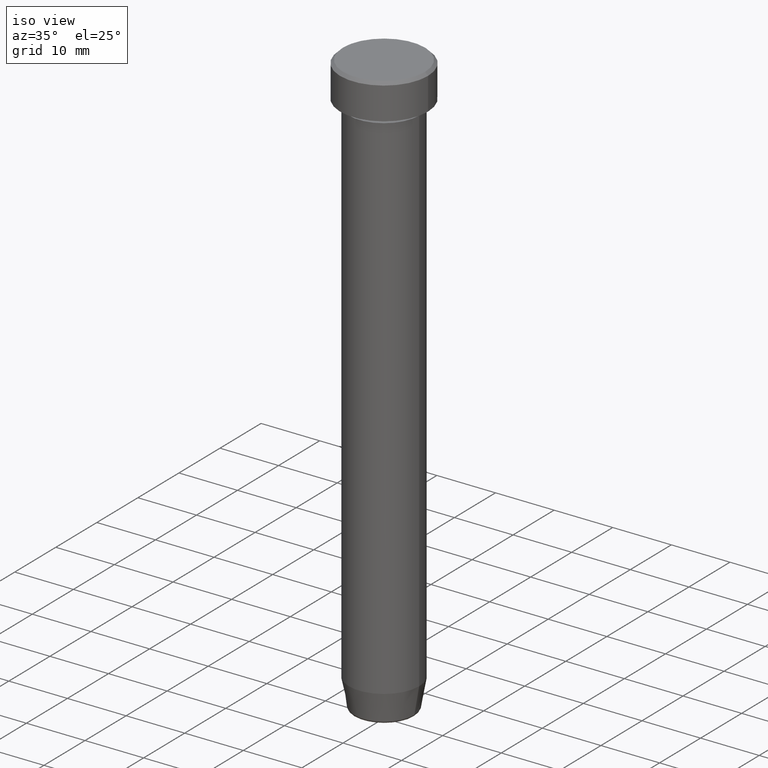
[diagram: clean part render]
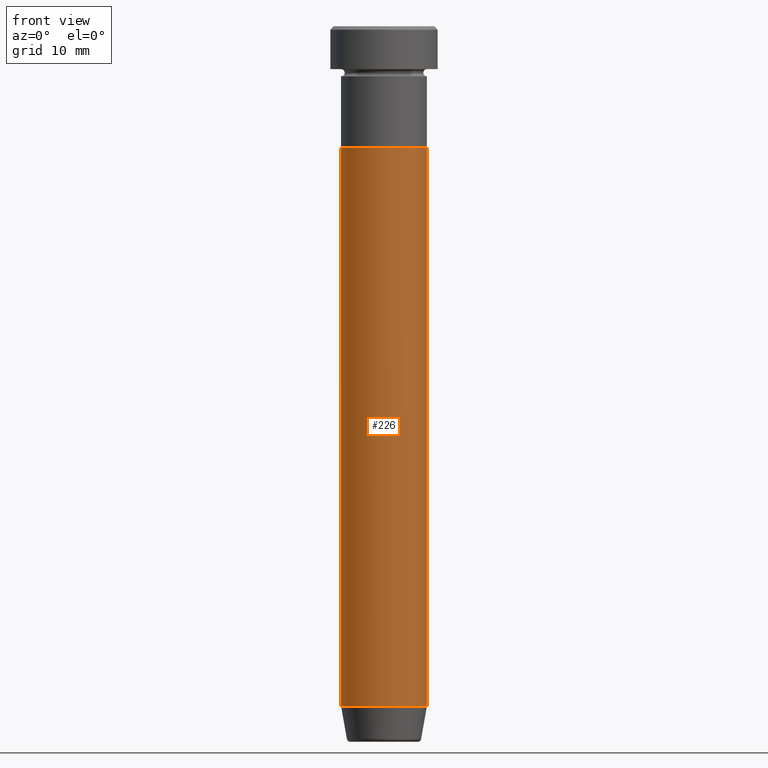
[diagram: tour spotlight — one face highlighted and labeled with its STEP entity id]
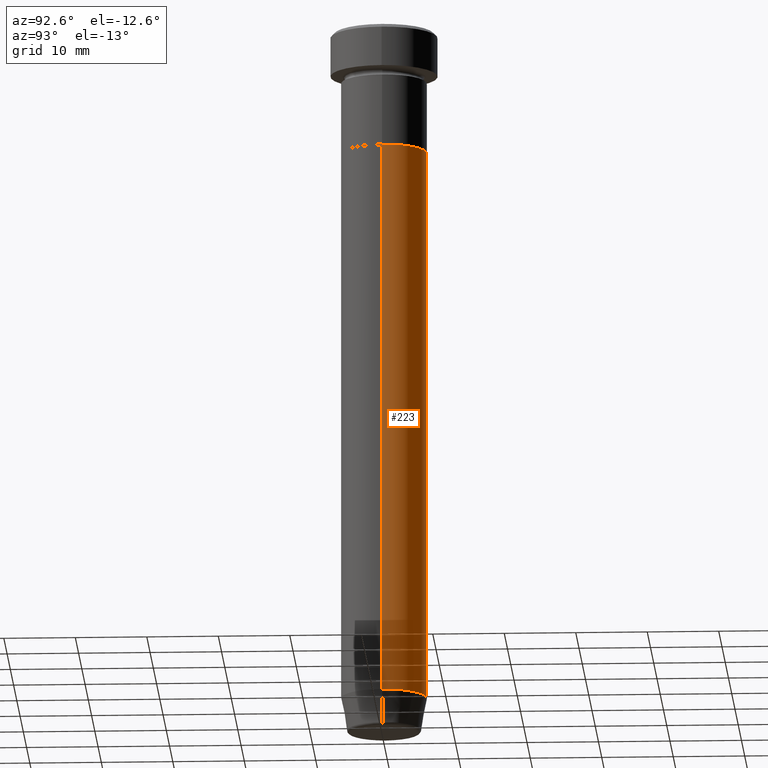
[diagram: tour spotlight — one face highlighted and labeled with its STEP entity id]
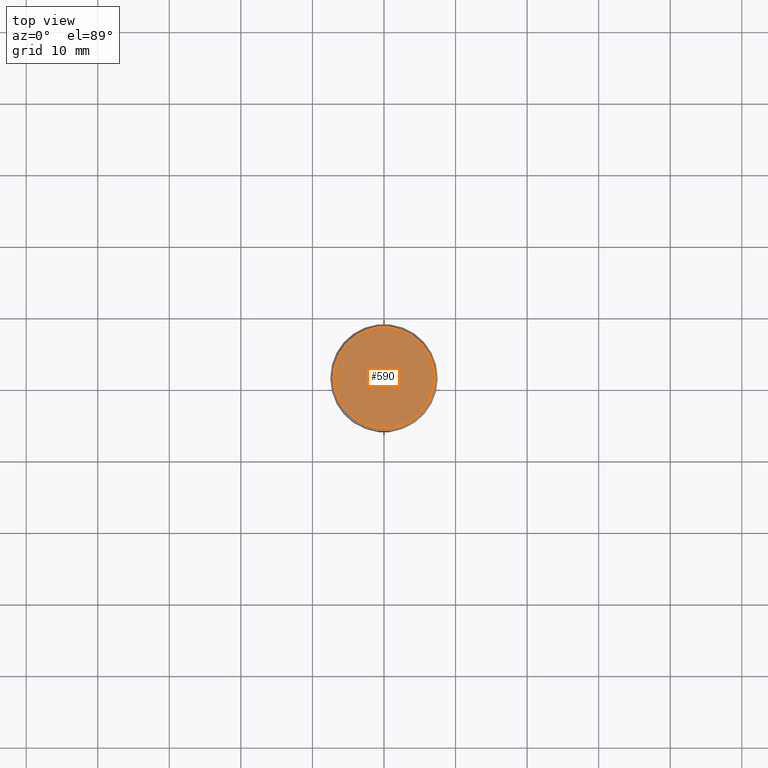
[diagram: tour spotlight — one face highlighted and labeled with its STEP entity id]
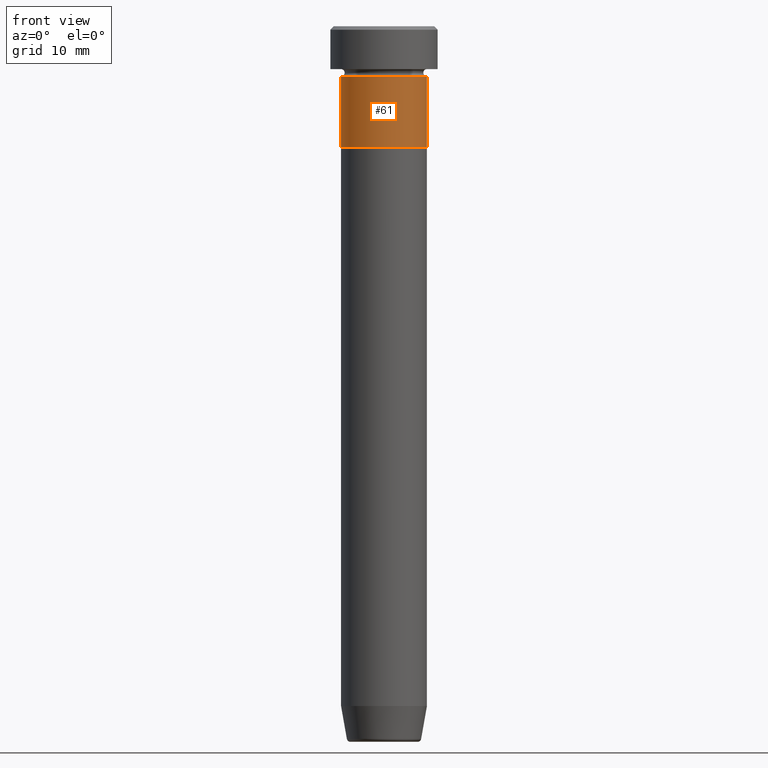
[diagram: tour spotlight — one face highlighted and labeled with its STEP entity id]
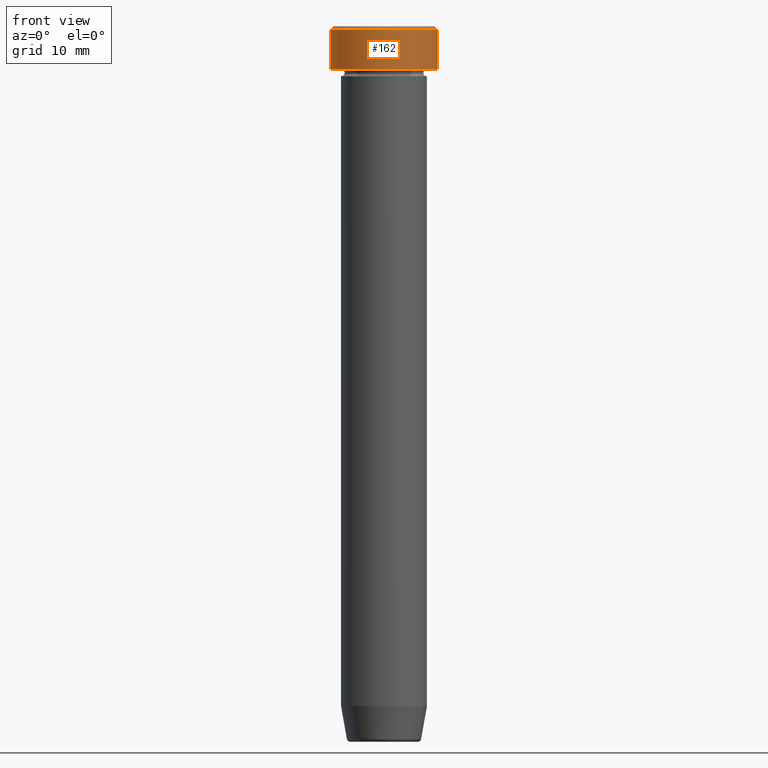
[diagram: tour spotlight — one face highlighted and labeled with its STEP entity id]
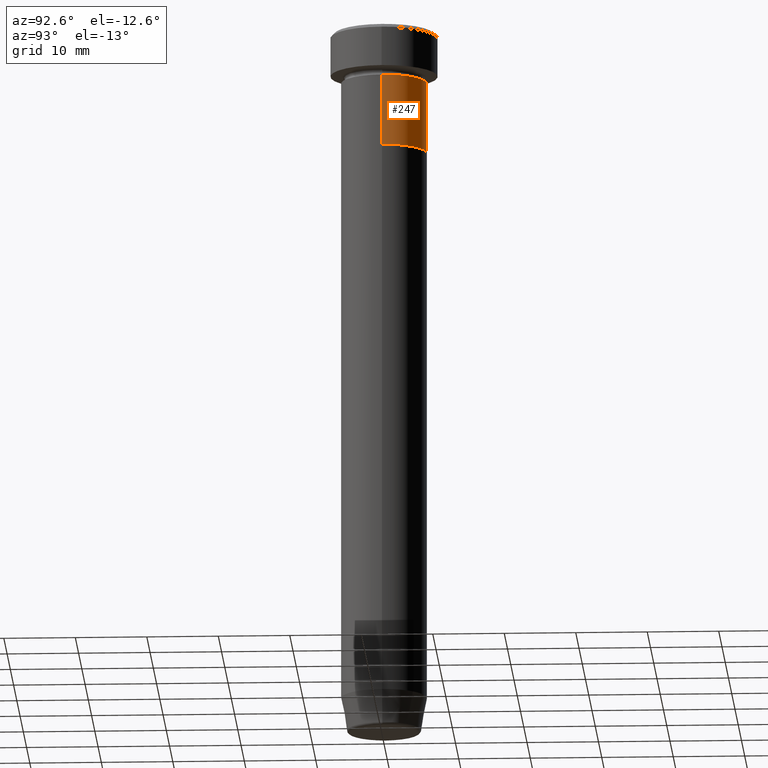
[diagram: tour spotlight — one face highlighted and labeled with its STEP entity id]
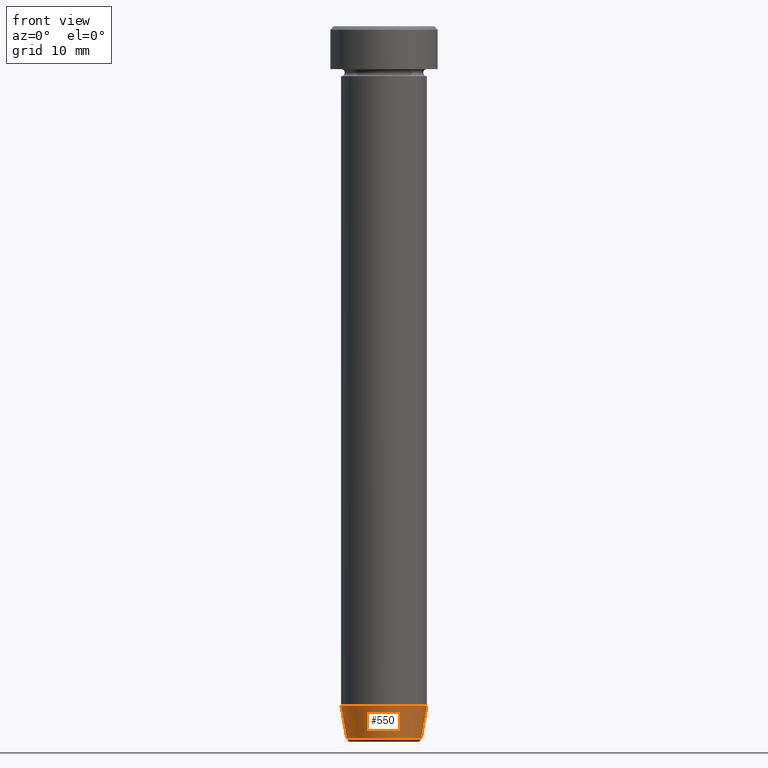
[diagram: tour spotlight — one face highlighted and labeled with its STEP entity id]
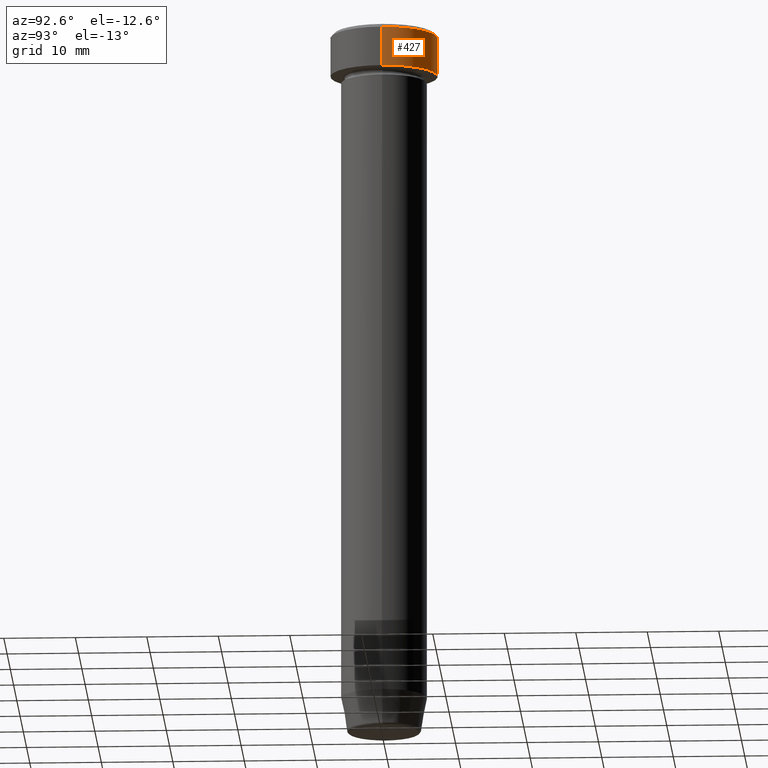
[diagram: tour spotlight — one face highlighted and labeled with its STEP entity id]
A machine part: a face-by-face anatomy tour. The part has 21 B-rep faces; the first image is the clean iso view, then the 8 largest visible faces are spotlighted one at a time (largest first), each with its STEP entity span.

Face 1 — front view, entity #226. In plain terms, the highlighted cylindrical surface (partial cylindrical patch) has radius 6 mm, axis along (-0, -0, 1).
Definition (entity closure, byte-faithful):
#11 = DIRECTION ( 'NONE',  ( -0.000000000000000000, -0.000000000000000000, 1.000000000000000000 ) ) ;
#17 = CARTESIAN_POINT ( 'NONE',  ( 6.000000000000000000, 0.000000000000000000, -95.00000000000000000 ) ) ;
#23 = ORIENTED_EDGE ( 'NONE', *, *, #424, .T. ) ;
#54 = CARTESIAN_POINT ( 'NONE',  ( 6.000000000000000000, 0.000000000000000000, -17.00000000000000000 ) ) ;
#56 = CARTESIAN_POINT ( 'NONE',  ( 0.000000000000000000, 0.000000000000000000, -17.00000000000000000 ) ) ;
#70 = VERTEX_POINT ( 'NONE', #95 ) ;
#78 = CARTESIAN_POINT ( 'NONE',  ( 0.000000000000000000, 0.000000000000000000, 0.000000000000000000 ) ) ;
#95 = CARTESIAN_POINT ( 'NONE',  ( -6.000000000000000000, 7.347880794884119736E-16, -95.00000000000000000 ) ) ;
#102 = EDGE_CURVE ( 'NONE', #589, #485, #198, .T. ) ;
#116 = EDGE_CURVE ( 'NONE', #70, #589, #187, .T. ) ;
#132 = AXIS2_PLACEMENT_3D ( 'NONE', #548, #135, #504 ) ;
#135 = DIRECTION ( 'NONE',  ( -0.000000000000000000, -0.000000000000000000, 1.000000000000000000 ) ) ;
#159 = DIRECTION ( 'NONE',  ( -0.000000000000000000, -0.000000000000000000, 1.000000000000000000 ) ) ;
#176 = ORIENTED_EDGE ( 'NONE', *, *, #116, .F. ) ;
#184 = VERTEX_POINT ( 'NONE', #17 ) ;
#187 = LINE ( 'NONE', #418, #584 ) ;
#198 = CIRCLE ( 'NONE', #264, 6.000000000000000000 ) ;
#201 = FACE_OUTER_BOUND ( 'NONE', #274, .T. ) ;
#226 = ADVANCED_FACE ( 'NONE', ( #201 ), #378, .T. ) ;
#263 = DIRECTION ( 'NONE',  ( -0.000000000000000000, -0.000000000000000000, 1.000000000000000000 ) ) ;
#264 = AXIS2_PLACEMENT_3D ( 'NONE', #56, #369, #322 ) ;
#265 = VECTOR ( 'NONE', #263, 1000.000000000000000 ) ;
#274 = EDGE_LOOP ( 'NONE', ( #176, #23, #338, #540 ) ) ;
#322 = DIRECTION ( 'NONE',  ( 1.000000000000000000, 0.000000000000000000, 0.000000000000000000 ) ) ;
#324 = EDGE_CURVE ( 'NONE', #184, #485, #398, .T. ) ;
#338 = ORIENTED_EDGE ( 'NONE', *, *, #324, .T. ) ;
#353 = CARTESIAN_POINT ( 'NONE',  ( 6.000000000000000000, 0.000000000000000000, 0.000000000000000000 ) ) ;
#354 = AXIS2_PLACEMENT_3D ( 'NONE', #78, #159, #436 ) ;
#369 = DIRECTION ( 'NONE',  ( -0.000000000000000000, -0.000000000000000000, 1.000000000000000000 ) ) ;
#378 = CYLINDRICAL_SURFACE ( 'NONE', #354, 6.000000000000000000 ) ;
#383 = CIRCLE ( 'NONE', #132, 6.000000000000000000 ) ;
#398 = LINE ( 'NONE', #353, #265 ) ;
#418 = CARTESIAN_POINT ( 'NONE',  ( -6.000000000000000000, 7.347880794884119736E-16, 0.000000000000000000 ) ) ;
#424 = EDGE_CURVE ( 'NONE', #70, #184, #383, .T. ) ;
#436 = DIRECTION ( 'NONE',  ( 1.000000000000000000, 0.000000000000000000, 0.000000000000000000 ) ) ;
#485 = VERTEX_POINT ( 'NONE', #54 ) ;
#504 = DIRECTION ( 'NONE',  ( 1.000000000000000000, 0.000000000000000000, 0.000000000000000000 ) ) ;
#516 = CARTESIAN_POINT ( 'NONE',  ( -6.000000000000000000, 7.347880794884119736E-16, -17.00000000000000000 ) ) ;
#540 = ORIENTED_EDGE ( 'NONE', *, *, #102, .F. ) ;
#548 = CARTESIAN_POINT ( 'NONE',  ( 0.000000000000000000, 0.000000000000000000, -95.00000000000000000 ) ) ;
#584 = VECTOR ( 'NONE', #11, 1000.000000000000000 ) ;
#589 = VERTEX_POINT ( 'NONE', #516 ) ;

Face 2 — auxiliary view, entity #223. In plain terms, the highlighted cylindrical surface (partial cylindrical patch) has radius 6 mm, axis along (-0, -0, 1).
Definition (entity closure, byte-faithful):
#11 = DIRECTION ( 'NONE',  ( -0.000000000000000000, -0.000000000000000000, 1.000000000000000000 ) ) ;
#17 = CARTESIAN_POINT ( 'NONE',  ( 6.000000000000000000, 0.000000000000000000, -95.00000000000000000 ) ) ;
#29 = DIRECTION ( 'NONE',  ( -0.000000000000000000, -0.000000000000000000, 1.000000000000000000 ) ) ;
#37 = ORIENTED_EDGE ( 'NONE', *, *, #116, .T. ) ;
#43 = AXIS2_PLACEMENT_3D ( 'NONE', #261, #29, #528 ) ;
#51 = AXIS2_PLACEMENT_3D ( 'NONE', #586, #133, #128 ) ;
#54 = CARTESIAN_POINT ( 'NONE',  ( 6.000000000000000000, 0.000000000000000000, -17.00000000000000000 ) ) ;
#70 = VERTEX_POINT ( 'NONE', #95 ) ;
#95 = CARTESIAN_POINT ( 'NONE',  ( -6.000000000000000000, 7.347880794884119736E-16, -95.00000000000000000 ) ) ;
#112 = CYLINDRICAL_SURFACE ( 'NONE', #543, 6.000000000000000000 ) ;
#113 = CIRCLE ( 'NONE', #51, 6.000000000000000000 ) ;
#116 = EDGE_CURVE ( 'NONE', #70, #589, #187, .T. ) ;
#127 = ORIENTED_EDGE ( 'NONE', *, *, #384, .F. ) ;
#128 = DIRECTION ( 'NONE',  ( 1.000000000000000000, 0.000000000000000000, 0.000000000000000000 ) ) ;
#133 = DIRECTION ( 'NONE',  ( -0.000000000000000000, -0.000000000000000000, 1.000000000000000000 ) ) ;
#140 = CIRCLE ( 'NONE', #43, 6.000000000000000000 ) ;
#174 = EDGE_CURVE ( 'NONE', #184, #70, #140, .T. ) ;
#184 = VERTEX_POINT ( 'NONE', #17 ) ;
#187 = LINE ( 'NONE', #418, #584 ) ;
#223 = ADVANCED_FACE ( 'NONE', ( #341 ), #112, .T. ) ;
#258 = CARTESIAN_POINT ( 'NONE',  ( 0.000000000000000000, 0.000000000000000000, 0.000000000000000000 ) ) ;
#261 = CARTESIAN_POINT ( 'NONE',  ( 0.000000000000000000, 0.000000000000000000, -95.00000000000000000 ) ) ;
#263 = DIRECTION ( 'NONE',  ( -0.000000000000000000, -0.000000000000000000, 1.000000000000000000 ) ) ;
#265 = VECTOR ( 'NONE', #263, 1000.000000000000000 ) ;
#324 = EDGE_CURVE ( 'NONE', #184, #485, #398, .T. ) ;
#341 = FACE_OUTER_BOUND ( 'NONE', #402, .T. ) ;
#353 = CARTESIAN_POINT ( 'NONE',  ( 6.000000000000000000, 0.000000000000000000, 0.000000000000000000 ) ) ;
#384 = EDGE_CURVE ( 'NONE', #485, #589, #113, .T. ) ;
#385 = DIRECTION ( 'NONE',  ( -0.000000000000000000, -0.000000000000000000, 1.000000000000000000 ) ) ;
#398 = LINE ( 'NONE', #353, #265 ) ;
#402 = EDGE_LOOP ( 'NONE', ( #576, #37, #127, #456 ) ) ;
#418 = CARTESIAN_POINT ( 'NONE',  ( -6.000000000000000000, 7.347880794884119736E-16, 0.000000000000000000 ) ) ;
#456 = ORIENTED_EDGE ( 'NONE', *, *, #324, .F. ) ;
#484 = DIRECTION ( 'NONE',  ( 1.000000000000000000, 0.000000000000000000, 0.000000000000000000 ) ) ;
#485 = VERTEX_POINT ( 'NONE', #54 ) ;
#516 = CARTESIAN_POINT ( 'NONE',  ( -6.000000000000000000, 7.347880794884119736E-16, -17.00000000000000000 ) ) ;
#528 = DIRECTION ( 'NONE',  ( 1.000000000000000000, 0.000000000000000000, 0.000000000000000000 ) ) ;
#543 = AXIS2_PLACEMENT_3D ( 'NONE', #258, #385, #484 ) ;
#576 = ORIENTED_EDGE ( 'NONE', *, *, #174, .T. ) ;
#584 = VECTOR ( 'NONE', #11, 1000.000000000000000 ) ;
#586 = CARTESIAN_POINT ( 'NONE',  ( 0.000000000000000000, 0.000000000000000000, -17.00000000000000000 ) ) ;
#589 = VERTEX_POINT ( 'NONE', #516 ) ;

Face 3 — top view, entity #590. In plain terms, the highlighted planar face has unit normal (0, -0, 1).
Definition (entity closure, byte-faithful):
#52 = AXIS2_PLACEMENT_3D ( 'NONE', #242, #231, #412 ) ;
#55 = CIRCLE ( 'NONE', #397, 7.000000000000001776 ) ;
#59 = CARTESIAN_POINT ( 'NONE',  ( 7.000000000000001776, 8.878689293818310074E-16, 0.000000000000000000 ) ) ;
#64 = VERTEX_POINT ( 'NONE', #515 ) ;
#87 = DIRECTION ( 'NONE',  ( -0.000000000000000000, -0.000000000000000000, 1.000000000000000000 ) ) ;
#134 = VERTEX_POINT ( 'NONE', #59 ) ;
#179 = CARTESIAN_POINT ( 'NONE',  ( 0.000000000000000000, 0.000000000000000000, 0.000000000000000000 ) ) ;
#183 = DIRECTION ( 'NONE',  ( 1.000000000000000000, 0.000000000000000000, 0.000000000000000000 ) ) ;
#190 = AXIS2_PLACEMENT_3D ( 'NONE', #179, #594, #183 ) ;
#231 = DIRECTION ( 'NONE',  ( 0.000000000000000000, -0.000000000000000000, 1.000000000000000000 ) ) ;
#242 = CARTESIAN_POINT ( 'NONE',  ( 0.000000000000000000, 0.000000000000000000, 0.000000000000000000 ) ) ;
#275 = FACE_OUTER_BOUND ( 'NONE', #381, .T. ) ;
#313 = CARTESIAN_POINT ( 'NONE',  ( 0.000000000000000000, 0.000000000000000000, 0.000000000000000000 ) ) ;
#359 = EDGE_CURVE ( 'NONE', #134, #64, #55, .T. ) ;
#381 = EDGE_LOOP ( 'NONE', ( #459, #386 ) ) ;
#386 = ORIENTED_EDGE ( 'NONE', *, *, #359, .T. ) ;
#397 = AXIS2_PLACEMENT_3D ( 'NONE', #313, #87, #450 ) ;
#412 = DIRECTION ( 'NONE',  ( 1.000000000000000000, 0.000000000000000000, 0.000000000000000000 ) ) ;
#414 = EDGE_CURVE ( 'NONE', #64, #134, #449, .T. ) ;
#449 = CIRCLE ( 'NONE', #190, 7.000000000000001776 ) ;
#450 = DIRECTION ( 'NONE',  ( 1.000000000000000000, 0.000000000000000000, 0.000000000000000000 ) ) ;
#459 = ORIENTED_EDGE ( 'NONE', *, *, #414, .T. ) ;
#471 = PLANE ( 'NONE',  #52 ) ;
#515 = CARTESIAN_POINT ( 'NONE',  ( -7.000000000000001776, 0.000000000000000000, 0.000000000000000000 ) ) ;
#590 = ADVANCED_FACE ( 'NONE', ( #275 ), #471, .T. ) ;
#594 = DIRECTION ( 'NONE',  ( -0.000000000000000000, -0.000000000000000000, 1.000000000000000000 ) ) ;

Face 4 — front view, entity #61. In plain terms, the highlighted cylindrical surface (partial cylindrical patch) has radius 6 mm, axis along (-0, -0, 1).
Definition (entity closure, byte-faithful):
#33 = VERTEX_POINT ( 'NONE', #428 ) ;
#36 = CARTESIAN_POINT ( 'NONE',  ( -6.000000000000000000, 7.347880794884119736E-16, 0.000000000000000000 ) ) ;
#39 = LINE ( 'NONE', #36, #235 ) ;
#61 = ADVANCED_FACE ( 'NONE', ( #158 ), #557, .T. ) ;
#73 = AXIS2_PLACEMENT_3D ( 'NONE', #426, #199, #100 ) ;
#94 = CARTESIAN_POINT ( 'NONE',  ( 6.000000000000000000, 0.000000000000000000, -17.00000000000000000 ) ) ;
#100 = DIRECTION ( 'NONE',  ( 1.000000000000000000, 0.000000000000000000, 0.000000000000000000 ) ) ;
#123 = ORIENTED_EDGE ( 'NONE', *, *, #579, .F. ) ;
#129 = EDGE_CURVE ( 'NONE', #549, #583, #284, .T. ) ;
#144 = DIRECTION ( 'NONE',  ( 1.000000000000000000, 0.000000000000000000, 0.000000000000000000 ) ) ;
#148 = DIRECTION ( 'NONE',  ( -0.000000000000000000, -0.000000000000000000, 1.000000000000000000 ) ) ;
#154 = DIRECTION ( 'NONE',  ( -0.000000000000000000, -0.000000000000000000, 1.000000000000000000 ) ) ;
#158 = FACE_OUTER_BOUND ( 'NONE', #204, .T. ) ;
#170 = EDGE_CURVE ( 'NONE', #358, #549, #489, .T. ) ;
#181 = ORIENTED_EDGE ( 'NONE', *, *, #304, .F. ) ;
#199 = DIRECTION ( 'NONE',  ( -0.000000000000000000, -0.000000000000000000, 1.000000000000000000 ) ) ;
#204 = EDGE_LOOP ( 'NONE', ( #181, #536, #268, #123 ) ) ;
#215 = DIRECTION ( 'NONE',  ( 1.000000000000000000, 0.000000000000000000, 0.000000000000000000 ) ) ;
#234 = CARTESIAN_POINT ( 'NONE',  ( 0.000000000000000000, 0.000000000000000000, 0.000000000000000000 ) ) ;
#235 = VECTOR ( 'NONE', #545, 1000.000000000000000 ) ;
#268 = ORIENTED_EDGE ( 'NONE', *, *, #129, .T. ) ;
#284 = LINE ( 'NONE', #472, #534 ) ;
#299 = CARTESIAN_POINT ( 'NONE',  ( 0.000000000000000000, 0.000000000000000000, -17.00000000000000000 ) ) ;
#304 = EDGE_CURVE ( 'NONE', #358, #33, #39, .T. ) ;
#358 = VERTEX_POINT ( 'NONE', #360 ) ;
#360 = CARTESIAN_POINT ( 'NONE',  ( -6.000000000000000000, 7.347880794884119736E-16, -17.00000000000000000 ) ) ;
#375 = CARTESIAN_POINT ( 'NONE',  ( 6.000000000000000000, 0.000000000000000000, -7.000000000000000000 ) ) ;
#396 = AXIS2_PLACEMENT_3D ( 'NONE', #299, #492, #215 ) ;
#426 = CARTESIAN_POINT ( 'NONE',  ( 0.000000000000000000, 0.000000000000000000, -7.000000000000000000 ) ) ;
#428 = CARTESIAN_POINT ( 'NONE',  ( -6.000000000000000000, 7.347880794884119736E-16, -7.000000000000000000 ) ) ;
#448 = AXIS2_PLACEMENT_3D ( 'NONE', #234, #148, #144 ) ;
#472 = CARTESIAN_POINT ( 'NONE',  ( 6.000000000000000000, 0.000000000000000000, 0.000000000000000000 ) ) ;
#489 = CIRCLE ( 'NONE', #396, 6.000000000000000000 ) ;
#492 = DIRECTION ( 'NONE',  ( -0.000000000000000000, -0.000000000000000000, 1.000000000000000000 ) ) ;
#510 = CIRCLE ( 'NONE', #73, 6.000000000000000000 ) ;
#534 = VECTOR ( 'NONE', #154, 1000.000000000000000 ) ;
#536 = ORIENTED_EDGE ( 'NONE', *, *, #170, .T. ) ;
#545 = DIRECTION ( 'NONE',  ( -0.000000000000000000, -0.000000000000000000, 1.000000000000000000 ) ) ;
#549 = VERTEX_POINT ( 'NONE', #94 ) ;
#557 = CYLINDRICAL_SURFACE ( 'NONE', #448, 6.000000000000000000 ) ;
#579 = EDGE_CURVE ( 'NONE', #33, #583, #510, .T. ) ;
#583 = VERTEX_POINT ( 'NONE', #375 ) ;

Face 5 — front view, entity #162. In plain terms, the highlighted cylindrical surface (partial cylindrical patch) has radius 7.5 mm, axis along (-0, -0, 1).
Definition (entity closure, byte-faithful):
#14 = CARTESIAN_POINT ( 'NONE',  ( -7.500000000000000000, 9.184850993605147944E-16, -0.4999999999999987232 ) ) ;
#35 = CIRCLE ( 'NONE', #498, 7.500000000000000000 ) ;
#53 = AXIS2_PLACEMENT_3D ( 'NONE', #80, #69, #74 ) ;
#69 = DIRECTION ( 'NONE',  ( 0.000000000000000000, 0.000000000000000000, -1.000000000000000000 ) ) ;
#74 = DIRECTION ( 'NONE',  ( 1.000000000000000000, 0.000000000000000000, 0.000000000000000000 ) ) ;
#80 = CARTESIAN_POINT ( 'NONE',  ( 0.000000000000000000, 0.000000000000000000, -0.4999999999999987232 ) ) ;
#88 = ORIENTED_EDGE ( 'NONE', *, *, #165, .T. ) ;
#115 = CARTESIAN_POINT ( 'NONE',  ( 7.500000000000000000, 0.000000000000000000, -0.4999999999999987232 ) ) ;
#119 = DIRECTION ( 'NONE',  ( -0.000000000000000000, -0.000000000000000000, 1.000000000000000000 ) ) ;
#142 = EDGE_CURVE ( 'NONE', #296, #197, #474, .T. ) ;
#152 = CIRCLE ( 'NONE', #53, 7.500000000000000000 ) ;
#162 = ADVANCED_FACE ( 'NONE', ( #535 ), #291, .T. ) ;
#165 = EDGE_CURVE ( 'NONE', #197, #220, #152, .T. ) ;
#172 = CARTESIAN_POINT ( 'NONE',  ( -7.500000000000000000, 9.184850993605147944E-16, -6.000000000000000000 ) ) ;
#173 = VECTOR ( 'NONE', #301, 1000.000000000000000 ) ;
#189 = EDGE_CURVE ( 'NONE', #225, #220, #380, .T. ) ;
#197 = VERTEX_POINT ( 'NONE', #115 ) ;
#209 = DIRECTION ( 'NONE',  ( 1.000000000000000000, 0.000000000000000000, 0.000000000000000000 ) ) ;
#220 = VERTEX_POINT ( 'NONE', #14 ) ;
#225 = VERTEX_POINT ( 'NONE', #172 ) ;
#243 = ORIENTED_EDGE ( 'NONE', *, *, #142, .T. ) ;
#245 = CARTESIAN_POINT ( 'NONE',  ( 7.500000000000000000, 0.000000000000000000, 0.000000000000000000 ) ) ;
#272 = EDGE_CURVE ( 'NONE', #225, #296, #35, .T. ) ;
#291 = CYLINDRICAL_SURFACE ( 'NONE', #513, 7.500000000000000000 ) ;
#295 = DIRECTION ( 'NONE',  ( 1.000000000000000000, 0.000000000000000000, 0.000000000000000000 ) ) ;
#296 = VERTEX_POINT ( 'NONE', #446 ) ;
#301 = DIRECTION ( 'NONE',  ( -0.000000000000000000, -0.000000000000000000, 1.000000000000000000 ) ) ;
#335 = CARTESIAN_POINT ( 'NONE',  ( 0.000000000000000000, 0.000000000000000000, 0.000000000000000000 ) ) ;
#337 = CARTESIAN_POINT ( 'NONE',  ( 0.000000000000000000, 0.000000000000000000, -6.000000000000000000 ) ) ;
#344 = VECTOR ( 'NONE', #392, 1000.000000000000000 ) ;
#380 = LINE ( 'NONE', #525, #173 ) ;
#392 = DIRECTION ( 'NONE',  ( -0.000000000000000000, -0.000000000000000000, 1.000000000000000000 ) ) ;
#441 = ORIENTED_EDGE ( 'NONE', *, *, #189, .F. ) ;
#446 = CARTESIAN_POINT ( 'NONE',  ( 7.500000000000000000, 0.000000000000000000, -6.000000000000000000 ) ) ;
#453 = EDGE_LOOP ( 'NONE', ( #441, #482, #243, #88 ) ) ;
#474 = LINE ( 'NONE', #245, #344 ) ;
#482 = ORIENTED_EDGE ( 'NONE', *, *, #272, .T. ) ;
#487 = DIRECTION ( 'NONE',  ( -0.000000000000000000, -0.000000000000000000, 1.000000000000000000 ) ) ;
#498 = AXIS2_PLACEMENT_3D ( 'NONE', #337, #119, #295 ) ;
#513 = AXIS2_PLACEMENT_3D ( 'NONE', #335, #487, #209 ) ;
#525 = CARTESIAN_POINT ( 'NONE',  ( -7.500000000000000000, 9.184850993605147944E-16, 0.000000000000000000 ) ) ;
#535 = FACE_OUTER_BOUND ( 'NONE', #453, .T. ) ;

Face 6 — auxiliary view, entity #247. In plain terms, the highlighted cylindrical surface (partial cylindrical patch) has radius 6 mm, axis along (-0, -0, 1).
Definition (entity closure, byte-faithful):
#20 = CARTESIAN_POINT ( 'NONE',  ( 0.000000000000000000, 0.000000000000000000, 0.000000000000000000 ) ) ;
#22 = CIRCLE ( 'NONE', #563, 6.000000000000000000 ) ;
#26 = CARTESIAN_POINT ( 'NONE',  ( 0.000000000000000000, 0.000000000000000000, -7.000000000000000000 ) ) ;
#33 = VERTEX_POINT ( 'NONE', #428 ) ;
#36 = CARTESIAN_POINT ( 'NONE',  ( -6.000000000000000000, 7.347880794884119736E-16, 0.000000000000000000 ) ) ;
#39 = LINE ( 'NONE', #36, #235 ) ;
#67 = DIRECTION ( 'NONE',  ( 1.000000000000000000, 0.000000000000000000, 0.000000000000000000 ) ) ;
#84 = EDGE_LOOP ( 'NONE', ( #376, #529, #526, #120 ) ) ;
#94 = CARTESIAN_POINT ( 'NONE',  ( 6.000000000000000000, 0.000000000000000000, -17.00000000000000000 ) ) ;
#120 = ORIENTED_EDGE ( 'NONE', *, *, #129, .F. ) ;
#129 = EDGE_CURVE ( 'NONE', #549, #583, #284, .T. ) ;
#154 = DIRECTION ( 'NONE',  ( -0.000000000000000000, -0.000000000000000000, 1.000000000000000000 ) ) ;
#164 = AXIS2_PLACEMENT_3D ( 'NONE', #249, #166, #203 ) ;
#166 = DIRECTION ( 'NONE',  ( -0.000000000000000000, -0.000000000000000000, 1.000000000000000000 ) ) ;
#203 = DIRECTION ( 'NONE',  ( 1.000000000000000000, 0.000000000000000000, 0.000000000000000000 ) ) ;
#235 = VECTOR ( 'NONE', #545, 1000.000000000000000 ) ;
#241 = EDGE_CURVE ( 'NONE', #583, #33, #22, .T. ) ;
#247 = ADVANCED_FACE ( 'NONE', ( #260 ), #440, .T. ) ;
#249 = CARTESIAN_POINT ( 'NONE',  ( 0.000000000000000000, 0.000000000000000000, -17.00000000000000000 ) ) ;
#250 = EDGE_CURVE ( 'NONE', #549, #358, #593, .T. ) ;
#260 = FACE_OUTER_BOUND ( 'NONE', #84, .T. ) ;
#284 = LINE ( 'NONE', #472, #534 ) ;
#304 = EDGE_CURVE ( 'NONE', #358, #33, #39, .T. ) ;
#358 = VERTEX_POINT ( 'NONE', #360 ) ;
#360 = CARTESIAN_POINT ( 'NONE',  ( -6.000000000000000000, 7.347880794884119736E-16, -17.00000000000000000 ) ) ;
#375 = CARTESIAN_POINT ( 'NONE',  ( 6.000000000000000000, 0.000000000000000000, -7.000000000000000000 ) ) ;
#376 = ORIENTED_EDGE ( 'NONE', *, *, #250, .T. ) ;
#428 = CARTESIAN_POINT ( 'NONE',  ( -6.000000000000000000, 7.347880794884119736E-16, -7.000000000000000000 ) ) ;
#433 = DIRECTION ( 'NONE',  ( -0.000000000000000000, -0.000000000000000000, 1.000000000000000000 ) ) ;
#440 = CYLINDRICAL_SURFACE ( 'NONE', #544, 6.000000000000000000 ) ;
#443 = DIRECTION ( 'NONE',  ( -0.000000000000000000, -0.000000000000000000, 1.000000000000000000 ) ) ;
#472 = CARTESIAN_POINT ( 'NONE',  ( 6.000000000000000000, 0.000000000000000000, 0.000000000000000000 ) ) ;
#480 = DIRECTION ( 'NONE',  ( 1.000000000000000000, 0.000000000000000000, 0.000000000000000000 ) ) ;
#526 = ORIENTED_EDGE ( 'NONE', *, *, #241, .F. ) ;
#529 = ORIENTED_EDGE ( 'NONE', *, *, #304, .T. ) ;
#534 = VECTOR ( 'NONE', #154, 1000.000000000000000 ) ;
#544 = AXIS2_PLACEMENT_3D ( 'NONE', #20, #443, #67 ) ;
#545 = DIRECTION ( 'NONE',  ( -0.000000000000000000, -0.000000000000000000, 1.000000000000000000 ) ) ;
#549 = VERTEX_POINT ( 'NONE', #94 ) ;
#563 = AXIS2_PLACEMENT_3D ( 'NONE', #26, #433, #480 ) ;
#583 = VERTEX_POINT ( 'NONE', #375 ) ;
#593 = CIRCLE ( 'NONE', #164, 6.000000000000000000 ) ;

Face 7 — front view, entity #550. In plain terms, the highlighted conical surface has half-angle 10 deg.
Definition (entity closure, byte-faithful):
#17 = CARTESIAN_POINT ( 'NONE',  ( 6.000000000000000000, 0.000000000000000000, -95.00000000000000000 ) ) ;
#24 = CIRCLE ( 'NONE', #280, 5.191219157375138060 ) ;
#30 = ORIENTED_EDGE ( 'NONE', *, *, #281, .T. ) ;
#50 = VERTEX_POINT ( 'NONE', #62 ) ;
#62 = CARTESIAN_POINT ( 'NONE',  ( 5.191219157375138060, 0.000000000000000000, -99.58682408883346682 ) ) ;
#70 = VERTEX_POINT ( 'NONE', #95 ) ;
#95 = CARTESIAN_POINT ( 'NONE',  ( -6.000000000000000000, 7.347880794884119736E-16, -95.00000000000000000 ) ) ;
#98 = CONICAL_SURFACE ( 'NONE', #438, 5.118365096457672792, 0.1745329251994331976 ) ;
#108 = ORIENTED_EDGE ( 'NONE', *, *, #490, .T. ) ;
#122 = DIRECTION ( 'NONE',  ( -0.1736481776669306087, 2.126576849575774688E-17, 0.9848077530122081313 ) ) ;
#132 = AXIS2_PLACEMENT_3D ( 'NONE', #548, #135, #504 ) ;
#135 = DIRECTION ( 'NONE',  ( -0.000000000000000000, -0.000000000000000000, 1.000000000000000000 ) ) ;
#147 = CARTESIAN_POINT ( 'NONE',  ( 0.000000000000000000, 0.000000000000000000, -100.0000000000000000 ) ) ;
#184 = VERTEX_POINT ( 'NONE', #17 ) ;
#188 = VECTOR ( 'NONE', #511, 999.9999999999998863 ) ;
#192 = ORIENTED_EDGE ( 'NONE', *, *, #206, .F. ) ;
#206 = EDGE_CURVE ( 'NONE', #461, #70, #520, .T. ) ;
#213 = CARTESIAN_POINT ( 'NONE',  ( 0.000000000000000000, 0.000000000000000000, -99.58682408883346682 ) ) ;
#218 = DIRECTION ( 'NONE',  ( -1.000000000000000000, 0.000000000000000000, 0.000000000000000000 ) ) ;
#253 = EDGE_LOOP ( 'NONE', ( #192, #30, #108, #342 ) ) ;
#277 = DIRECTION ( 'NONE',  ( -0.000000000000000000, -0.000000000000000000, 1.000000000000000000 ) ) ;
#280 = AXIS2_PLACEMENT_3D ( 'NONE', #213, #389, #218 ) ;
#281 = EDGE_CURVE ( 'NONE', #461, #50, #24, .T. ) ;
#285 = DIRECTION ( 'NONE',  ( 1.000000000000000000, 0.000000000000000000, 0.000000000000000000 ) ) ;
#326 = LINE ( 'NONE', #329, #188 ) ;
#329 = CARTESIAN_POINT ( 'NONE',  ( 5.118365096457672792, 0.000000000000000000, -100.0000000000000000 ) ) ;
#342 = ORIENTED_EDGE ( 'NONE', *, *, #424, .F. ) ;
#383 = CIRCLE ( 'NONE', #132, 6.000000000000000000 ) ;
#389 = DIRECTION ( 'NONE',  ( -0.000000000000000000, -0.000000000000000000, 1.000000000000000000 ) ) ;
#424 = EDGE_CURVE ( 'NONE', #70, #184, #383, .T. ) ;
#438 = AXIS2_PLACEMENT_3D ( 'NONE', #147, #277, #285 ) ;
#461 = VERTEX_POINT ( 'NONE', #462 ) ;
#462 = CARTESIAN_POINT ( 'NONE',  ( -5.191219157375138060, 6.852645359818002966E-16, -99.58682408883346682 ) ) ;
#468 = VECTOR ( 'NONE', #122, 999.9999999999998863 ) ;
#473 = FACE_OUTER_BOUND ( 'NONE', #253, .T. ) ;
#490 = EDGE_CURVE ( 'NONE', #50, #184, #326, .T. ) ;
#504 = DIRECTION ( 'NONE',  ( 1.000000000000000000, 0.000000000000000000, 0.000000000000000000 ) ) ;
#511 = DIRECTION ( 'NONE',  ( 0.1736481776669306087, 0.000000000000000000, 0.9848077530122081313 ) ) ;
#520 = LINE ( 'NONE', #567, #468 ) ;
#548 = CARTESIAN_POINT ( 'NONE',  ( 0.000000000000000000, 0.000000000000000000, -95.00000000000000000 ) ) ;
#550 = ADVANCED_FACE ( 'NONE', ( #473 ), #98, .T. ) ;
#567 = CARTESIAN_POINT ( 'NONE',  ( -5.118365096457672792, 6.268189432244423169E-16, -100.0000000000000000 ) ) ;

Face 8 — auxiliary view, entity #427. In plain terms, the highlighted cylindrical surface (partial cylindrical patch) has radius 7.5 mm, axis along (-0, -0, 1).
Definition (entity closure, byte-faithful):
#3 = CIRCLE ( 'NONE', #210, 7.500000000000000000 ) ;
#14 = CARTESIAN_POINT ( 'NONE',  ( -7.500000000000000000, 9.184850993605147944E-16, -0.4999999999999987232 ) ) ;
#45 = CYLINDRICAL_SURFACE ( 'NONE', #522, 7.500000000000000000 ) ;
#49 = DIRECTION ( 'NONE',  ( -0.000000000000000000, -0.000000000000000000, 1.000000000000000000 ) ) ;
#91 = FACE_OUTER_BOUND ( 'NONE', #200, .T. ) ;
#93 = ORIENTED_EDGE ( 'NONE', *, *, #189, .T. ) ;
#115 = CARTESIAN_POINT ( 'NONE',  ( 7.500000000000000000, 0.000000000000000000, -0.4999999999999987232 ) ) ;
#136 = ORIENTED_EDGE ( 'NONE', *, *, #442, .T. ) ;
#137 = CARTESIAN_POINT ( 'NONE',  ( 0.000000000000000000, 0.000000000000000000, -6.000000000000000000 ) ) ;
#142 = EDGE_CURVE ( 'NONE', #296, #197, #474, .T. ) ;
#150 = ORIENTED_EDGE ( 'NONE', *, *, #142, .F. ) ;
#172 = CARTESIAN_POINT ( 'NONE',  ( -7.500000000000000000, 9.184850993605147944E-16, -6.000000000000000000 ) ) ;
#173 = VECTOR ( 'NONE', #301, 1000.000000000000000 ) ;
#189 = EDGE_CURVE ( 'NONE', #225, #220, #380, .T. ) ;
#197 = VERTEX_POINT ( 'NONE', #115 ) ;
#200 = EDGE_LOOP ( 'NONE', ( #596, #93, #136, #150 ) ) ;
#210 = AXIS2_PLACEMENT_3D ( 'NONE', #423, #553, #564 ) ;
#220 = VERTEX_POINT ( 'NONE', #14 ) ;
#225 = VERTEX_POINT ( 'NONE', #172 ) ;
#227 = DIRECTION ( 'NONE',  ( -0.000000000000000000, -0.000000000000000000, 1.000000000000000000 ) ) ;
#245 = CARTESIAN_POINT ( 'NONE',  ( 7.500000000000000000, 0.000000000000000000, 0.000000000000000000 ) ) ;
#296 = VERTEX_POINT ( 'NONE', #446 ) ;
#301 = DIRECTION ( 'NONE',  ( -0.000000000000000000, -0.000000000000000000, 1.000000000000000000 ) ) ;
#321 = DIRECTION ( 'NONE',  ( 1.000000000000000000, 0.000000000000000000, 0.000000000000000000 ) ) ;
#344 = VECTOR ( 'NONE', #392, 1000.000000000000000 ) ;
#346 = DIRECTION ( 'NONE',  ( 1.000000000000000000, 0.000000000000000000, 0.000000000000000000 ) ) ;
#364 = CIRCLE ( 'NONE', #569, 7.500000000000000000 ) ;
#367 = EDGE_CURVE ( 'NONE', #296, #225, #364, .T. ) ;
#380 = LINE ( 'NONE', #525, #173 ) ;
#392 = DIRECTION ( 'NONE',  ( -0.000000000000000000, -0.000000000000000000, 1.000000000000000000 ) ) ;
#416 = CARTESIAN_POINT ( 'NONE',  ( 0.000000000000000000, 0.000000000000000000, 0.000000000000000000 ) ) ;
#423 = CARTESIAN_POINT ( 'NONE',  ( 0.000000000000000000, 0.000000000000000000, -0.4999999999999987232 ) ) ;
#427 = ADVANCED_FACE ( 'NONE', ( #91 ), #45, .T. ) ;
#442 = EDGE_CURVE ( 'NONE', #220, #197, #3, .T. ) ;
#446 = CARTESIAN_POINT ( 'NONE',  ( 7.500000000000000000, 0.000000000000000000, -6.000000000000000000 ) ) ;
#474 = LINE ( 'NONE', #245, #344 ) ;
#522 = AXIS2_PLACEMENT_3D ( 'NONE', #416, #49, #321 ) ;
#525 = CARTESIAN_POINT ( 'NONE',  ( -7.500000000000000000, 9.184850993605147944E-16, 0.000000000000000000 ) ) ;
#553 = DIRECTION ( 'NONE',  ( 0.000000000000000000, 0.000000000000000000, -1.000000000000000000 ) ) ;
#564 = DIRECTION ( 'NONE',  ( 1.000000000000000000, 0.000000000000000000, 0.000000000000000000 ) ) ;
#569 = AXIS2_PLACEMENT_3D ( 'NONE', #137, #227, #346 ) ;
#596 = ORIENTED_EDGE ( 'NONE', *, *, #367, .T. ) ;